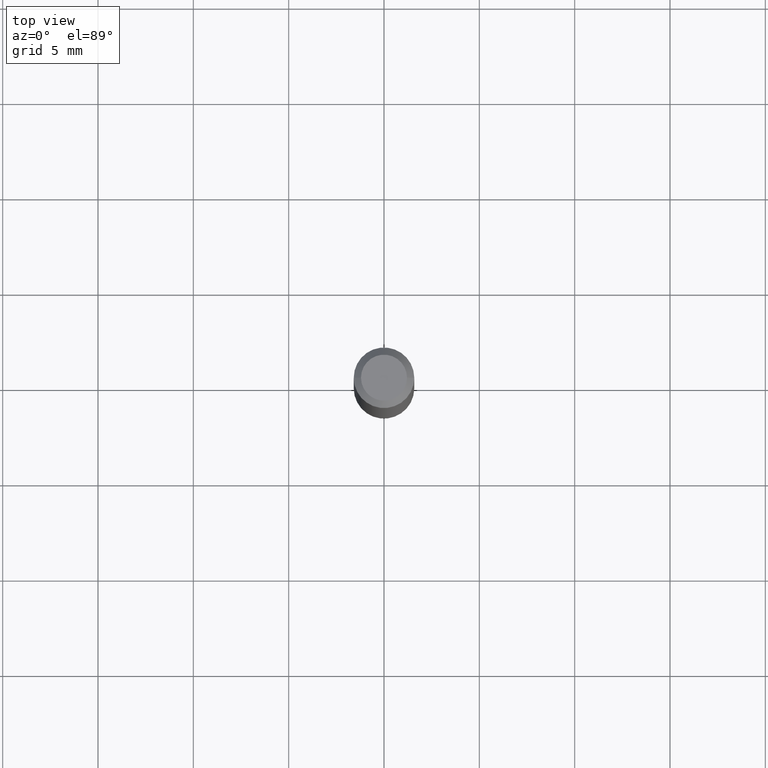
[diagram: clean part render]
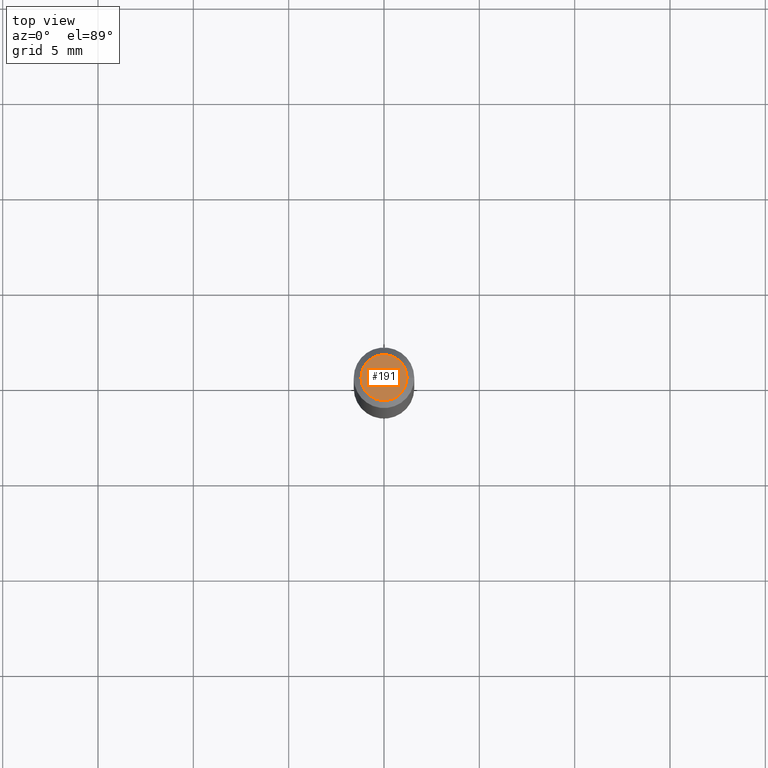
[diagram: same view with one face highlighted and labeled with its STEP entity id]
A machine part, top view. The second image highlights one B-rep face of the part: STEP entity #191.
In plain terms, the highlighted planar face has unit normal (0, -0, -1).
Its self-contained STEP definition (entity closure, byte-faithful):
#21 = VERTEX_POINT ( 'NONE', #330 ) ;
#29 = CARTESIAN_POINT ( 'NONE',  ( 7.848942293851005666E-45, -1.120620941036972666E-30, -3.209585938695794308E-16 ) ) ;
#38 = CIRCLE ( 'NONE', #297, 0.04749999999999999362 ) ;
#55 = DIRECTION ( 'NONE',  ( 1.000000000000000000, -6.982962677686267499E-15, 4.852736867747366768E-29 ) ) ;
#115 = DIRECTION ( 'NONE',  ( -1.000000000000000000, 6.982962677686265922E-15, -4.876176775795935793E-29 ) ) ;
#152 = CARTESIAN_POINT ( 'NONE',  ( 3.316907271900976096E-16, 0.04749999999999999362, -3.263246605298391118E-16 ) ) ;
#166 = DIRECTION ( 'NONE',  ( -2.445468806185136597E-29, 3.491481338843145583E-15, 1.000000000000000000 ) ) ;
#167 = ORIENTED_EDGE ( 'NONE', *, *, #286, .T. ) ;
#191 = ADVANCED_FACE ( 'NONE', ( #192 ), #236, .F. ) ;
#192 = FACE_OUTER_BOUND ( 'NONE', #379, .T. ) ;
#202 = ORIENTED_EDGE ( 'NONE', *, *, #329, .T. ) ;
#209 = DIRECTION ( 'NONE',  ( 1.000000000000000000, -6.982962677686267499E-15, 4.852736867747366768E-29 ) ) ;
#236 = PLANE ( 'NONE',  #454 ) ;
#248 = DIRECTION ( 'NONE',  ( -2.445468806185136597E-29, 3.491481338843145583E-15, 1.000000000000000000 ) ) ;
#276 = DIRECTION ( 'NONE',  ( 2.438088387897960049E-29, -3.491481338843145188E-15, -1.000000000000000000 ) ) ;
#282 = VERTEX_POINT ( 'NONE', #343 ) ;
#286 = EDGE_CURVE ( 'NONE', #282, #21, #38, .T. ) ;
#291 = CIRCLE ( 'NONE', #331, 0.04749999999999999362 ) ;
#297 = AXIS2_PLACEMENT_3D ( 'NONE', #389, #248, #55 ) ;
#329 = EDGE_CURVE ( 'NONE', #21, #282, #291, .T. ) ;
#330 = CARTESIAN_POINT ( 'NONE',  ( 0.04749999999999999362, -4.035134999187584047E-16, -3.209585938695769163E-16 ) ) ;
#331 = AXIS2_PLACEMENT_3D ( 'NONE', #29, #166, #209 ) ;
#343 = CARTESIAN_POINT ( 'NONE',  ( -0.04749999999999999362, 3.578768372314205575E-16, -3.209585938695818960E-16 ) ) ;
#379 = EDGE_LOOP ( 'NONE', ( #167, #202 ) ) ;
#389 = CARTESIAN_POINT ( 'NONE',  ( 7.848942293851005666E-45, -1.120620941036972666E-30, -3.209585938695794308E-16 ) ) ;
#454 = AXIS2_PLACEMENT_3D ( 'NONE', #152, #276, #115 ) ;